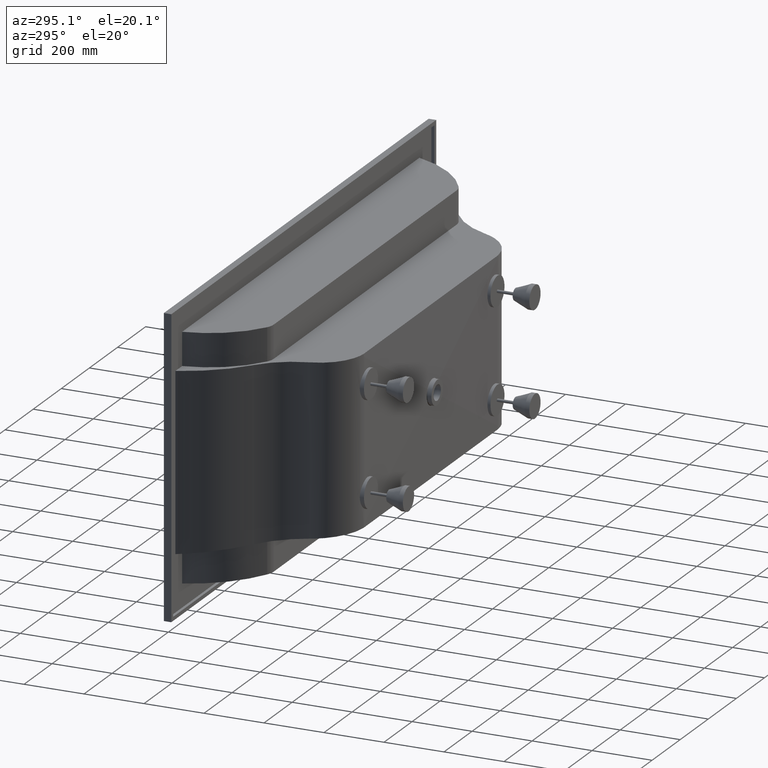
[diagram: clean part render]
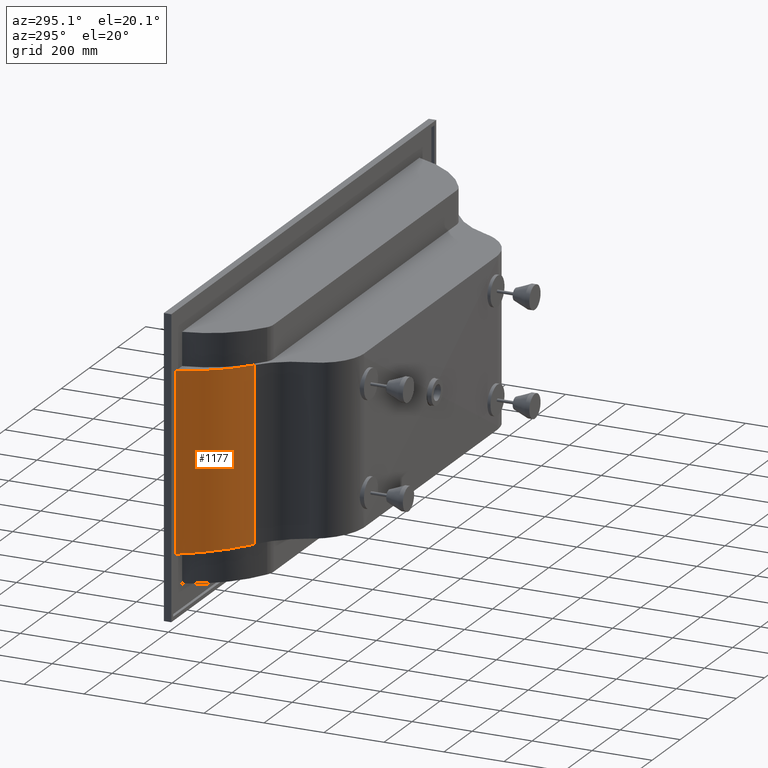
[diagram: same view with one face highlighted and labeled with its STEP entity id]
A machine part, auxiliary view. The second image highlights one B-rep face of the part: STEP entity #1177.
In plain terms, the highlighted cylindrical surface (partial cylindrical patch) has radius 485 mm, axis along (-0, -0, -1).
Its self-contained STEP definition (entity closure, byte-faithful):
#19 = VERTEX_POINT ( 'NONE', #5276 ) ;
#156 = CARTESIAN_POINT ( 'NONE',  ( 484.1584777113508800, 217.4588496104642600, -214.9999999999999700 ) ) ;
#721 = CARTESIAN_POINT ( 'NONE',  ( 144.1768081232661400, -138.5480240569817700, -205.2980029319984100 ) ) ;
#733 = VERTEX_POINT ( 'NONE', #4134 ) ;
#912 = CARTESIAN_POINT ( 'NONE',  ( 88.43121796263638100, -75.33521734811319000, -203.1132285065766600 ) ) ;
#1177 = ADVANCED_FACE ( 'NONE', ( #5445 ), #4130, .T. ) ;
#1213 = ORIENTED_EDGE ( 'NONE', *, *, #4043, .F. ) ;
#1302 = ORIENTED_EDGE ( 'NONE', *, *, #2357, .T. ) ;
#1551 = CARTESIAN_POINT ( 'NONE',  ( 214.1950912519290900, -185.4614526471425200, -783.0805652042863600 ) ) ;
#1956 = LINE ( 'NONE', #3729, #5219 ) ;
#2203 = VERTEX_POINT ( 'NONE', #4016 ) ;
#2357 = EDGE_CURVE ( 'NONE', #733, #19, #1956, .T. ) ;
#2596 = DIRECTION ( 'NONE',  ( -0.0000000000000000000, -0.0000000000000000000, -1.000000000000000000 ) ) ;
#2709 = LINE ( 'NONE', #3097, #5067 ) ;
#2827 = DIRECTION ( 'NONE',  ( -0.0000000000000000000, -0.0000000000000000000, -1.000000000000000000 ) ) ;
#2981 = ORIENTED_EDGE ( 'NONE', *, *, #3600, .F. ) ;
#3097 = CARTESIAN_POINT ( 'NONE',  ( 214.1950912519290900, -185.4614526471425200, -214.9999999999999700 ) ) ;
#3406 = CARTESIAN_POINT ( 'NONE',  ( 50.64187050224483500, 0.0000000000000000000, -200.5094767549137500 ) ) ;
#3600 = EDGE_CURVE ( 'NONE', #733, #2203, #3722, .T. ) ;
#3722 =( BOUNDED_CURVE ( )  B_SPLINE_CURVE ( 3, ( #3406, #912, #721, #3924 ),
 .UNSPECIFIED., .F., .T. ) 
 B_SPLINE_CURVE_WITH_KNOTS ( ( 4, 4 ),
 ( 5.177328522520626900, 5.692866939833173500 ),
 .UNSPECIFIED. ) 
 CURVE ( )  GEOMETRIC_REPRESENTATION_ITEM ( )  RATIONAL_B_SPLINE_CURVE ( ( 1.000000000000000000, 0.9779740440957367400, 0.9779740440957367400, 1.000000000000000000 ) ) 
 REPRESENTATION_ITEM ( '' )  );
#3729 = CARTESIAN_POINT ( 'NONE',  ( 50.64187050224499800, 0.0000000000000000000, -214.9999999999999700 ) ) ;
#3857 =( BOUNDED_CURVE ( )  B_SPLINE_CURVE ( 3, ( #1551, #4919, #4627, #4758 ),
 .UNSPECIFIED., .F., .F. ) 
 B_SPLINE_CURVE_WITH_KNOTS ( ( 4, 4 ),
 ( 3.731911020936205900, 4.247449438248752400 ),
 .UNSPECIFIED. ) 
 CURVE ( )  GEOMETRIC_REPRESENTATION_ITEM ( )  RATIONAL_B_SPLINE_CURVE ( ( 1.000000000000000000, 0.9779740440957367400, 0.9779740440957367400, 1.000000000000000000 ) ) 
 REPRESENTATION_ITEM ( '' )  );
#3873 = VERTEX_POINT ( 'NONE', #5222 ) ;
#3917 = EDGE_LOOP ( 'NONE', ( #2981, #1302, #1213, #3990 ) ) ;
#3924 = CARTESIAN_POINT ( 'NONE',  ( 214.1950912519290900, -185.4614526471425200, -206.9194347957136100 ) ) ;
#3990 = ORIENTED_EDGE ( 'NONE', *, *, #5552, .F. ) ;
#4016 = CARTESIAN_POINT ( 'NONE',  ( 214.1950912519290900, -185.4614526471425200, -206.9194347957136100 ) ) ;
#4043 = EDGE_CURVE ( 'NONE', #3873, #19, #3857, .T. ) ;
#4130 = CYLINDRICAL_SURFACE ( 'NONE', #5478, 485.0000000000007400 ) ;
#4134 = CARTESIAN_POINT ( 'NONE',  ( 50.64187050224483500, 0.0000000000000000000, -200.5094767549137500 ) ) ;
#4597 = DIRECTION ( 'NONE',  ( -1.000000000000000000, 0.0000000000000000000, 0.0000000000000000000 ) ) ;
#4627 = CARTESIAN_POINT ( 'NONE',  ( 88.43121796263646700, -75.33521734811331800, -786.8867714934232300 ) ) ;
#4758 = CARTESIAN_POINT ( 'NONE',  ( 50.64187050224499800, 0.0000000000000000000, -789.4905232450862500 ) ) ;
#4919 = CARTESIAN_POINT ( 'NONE',  ( 144.1768081232662800, -138.5480240569818900, -784.7019970680015600 ) ) ;
#5067 = VECTOR ( 'NONE', #2596, 1000.000000000000000 ) ;
#5156 = DIRECTION ( 'NONE',  ( -0.0000000000000000000, -0.0000000000000000000, -1.000000000000000000 ) ) ;
#5219 = VECTOR ( 'NONE', #5156, 1000.000000000000000 ) ;
#5222 = CARTESIAN_POINT ( 'NONE',  ( 214.1950912519290900, -185.4614526471425200, -783.0805652042863600 ) ) ;
#5276 = CARTESIAN_POINT ( 'NONE',  ( 50.64187050224499800, 0.0000000000000000000, -789.4905232450862500 ) ) ;
#5445 = FACE_OUTER_BOUND ( 'NONE', #3917, .T. ) ;
#5478 = AXIS2_PLACEMENT_3D ( 'NONE', #156, #2827, #4597 ) ;
#5552 = EDGE_CURVE ( 'NONE', #2203, #3873, #2709, .T. ) ;